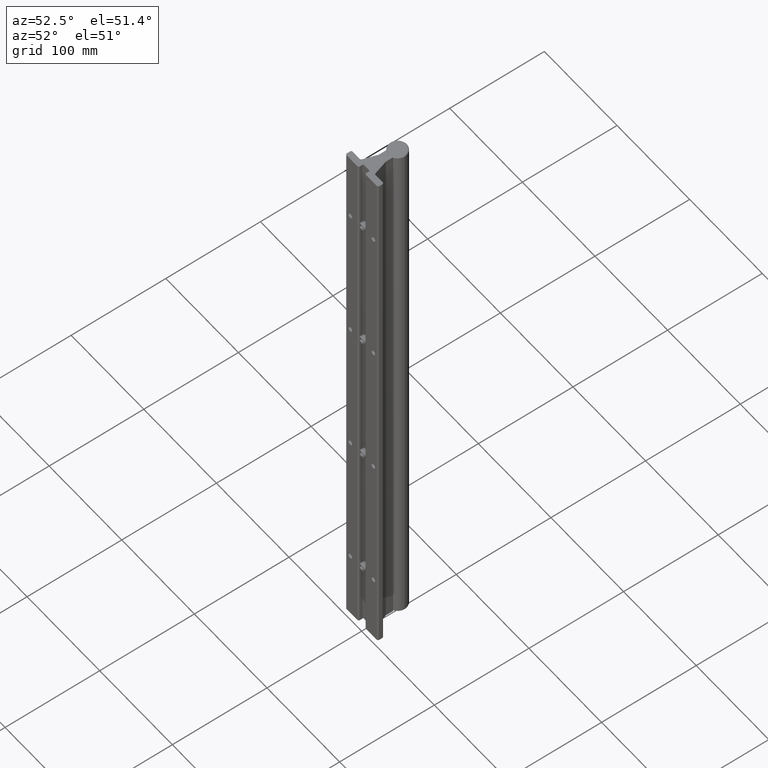
[diagram: clean part render]
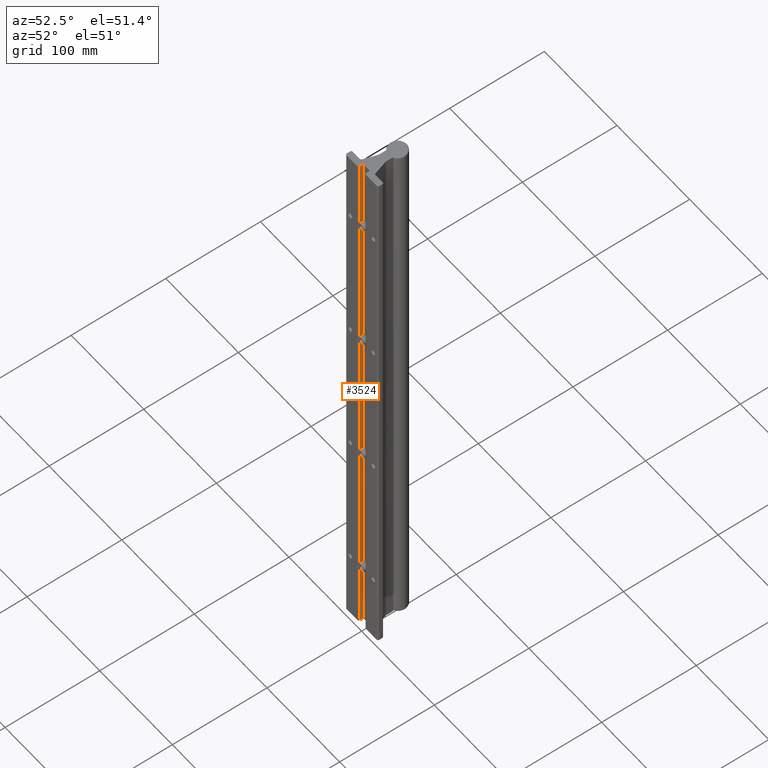
[diagram: same view with one face highlighted and labeled with its STEP entity id]
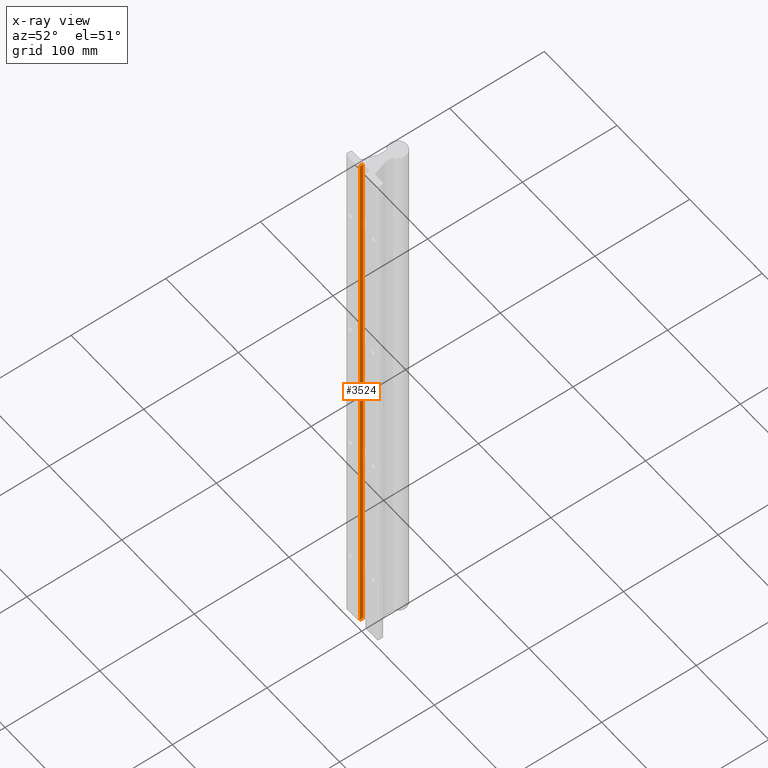
[diagram: x-ray of the same camera — body ghosted, the highlighted face saturated]
A machine part, auxiliary view. The second image highlights one B-rep face of the part: STEP entity #3524.
The next image is the same camera in x-ray: the body ghosted, the highlighted face saturated — about 0% of this face is hidden behind the body in this view.
In plain terms, the highlighted planar face has unit normal (1, -0, 0).
Its self-contained STEP definition (entity closure, byte-faithful):
#236 = EDGE_CURVE ( 'NONE', #2052, #4039, #5230, .T. ) ;
#548 = DIRECTION ( 'NONE',  ( 1.000000000000000000, -2.626776916984868919E-15, 0.0000000000000000000 ) ) ;
#572 = DIRECTION ( 'NONE',  ( 0.0000000000000000000, 0.0000000000000000000, 1.000000000000000000 ) ) ;
#775 = CARTESIAN_POINT ( 'NONE',  ( -0.1749999999999992395, 0.1900000000000000300, -24.00000000000000355 ) ) ;
#909 = CARTESIAN_POINT ( 'NONE',  ( -0.1749999999999995726, 0.06000000000000004635, 0.0000000000000000000 ) ) ;
#988 = EDGE_CURVE ( 'NONE', #1964, #4039, #2918, .T. ) ;
#1236 = DIRECTION ( 'NONE',  ( -2.626776916984868919E-15, -1.000000000000000000, 0.0000000000000000000 ) ) ;
#1435 = CARTESIAN_POINT ( 'NONE',  ( -0.1749999999999995726, 0.06000000000000004635, -26.10463218188032641 ) ) ;
#1576 = ORIENTED_EDGE ( 'NONE', *, *, #2734, .F. ) ;
#1964 = VERTEX_POINT ( 'NONE', #2636 ) ;
#2018 = CARTESIAN_POINT ( 'NONE',  ( -0.1749999999999992395, 0.1900000000000000300, -26.10463218188032641 ) ) ;
#2027 = CARTESIAN_POINT ( 'NONE',  ( -0.1749999999999995726, 0.06000000000000004635, -24.00000000000000355 ) ) ;
#2048 = CARTESIAN_POINT ( 'NONE',  ( -0.1749999999999992395, 0.1900000000000000300, -0.0000000000000000000 ) ) ;
#2052 = VERTEX_POINT ( 'NONE', #775 ) ;
#2060 = CARTESIAN_POINT ( 'NONE',  ( -0.1749999999999995726, 0.06000000000000004635, -26.10463218188032641 ) ) ;
#2216 = EDGE_LOOP ( 'NONE', ( #1576, #5793, #5208, #4336 ) ) ;
#2407 = VERTEX_POINT ( 'NONE', #2027 ) ;
#2636 = CARTESIAN_POINT ( 'NONE',  ( -0.1749999999999995726, 0.06000000000000004635, 0.0000000000000000000 ) ) ;
#2734 = EDGE_CURVE ( 'NONE', #2052, #2407, #5123, .T. ) ;
#2821 = AXIS2_PLACEMENT_3D ( 'NONE', #1435, #548, #4853 ) ;
#2847 = VECTOR ( 'NONE', #5311, 39.37007874015748143 ) ;
#2871 = LINE ( 'NONE', #2060, #5109 ) ;
#2918 = LINE ( 'NONE', #909, #2847 ) ;
#2959 = PLANE ( 'NONE',  #2821 ) ;
#3524 = ADVANCED_FACE ( 'NONE', ( #5329 ), #2959, .T. ) ;
#3800 = VECTOR ( 'NONE', #1236, 39.37007874015748143 ) ;
#3818 = EDGE_CURVE ( 'NONE', #2407, #1964, #2871, .T. ) ;
#4039 = VERTEX_POINT ( 'NONE', #2048 ) ;
#4336 = ORIENTED_EDGE ( 'NONE', *, *, #3818, .F. ) ;
#4853 = DIRECTION ( 'NONE',  ( 2.626776916984868919E-15, 1.000000000000000000, 0.0000000000000000000 ) ) ;
#4921 = VECTOR ( 'NONE', #572, 39.37007874015748143 ) ;
#5109 = VECTOR ( 'NONE', #5956, 39.37007874015748143 ) ;
#5123 = LINE ( 'NONE', #6139, #3800 ) ;
#5208 = ORIENTED_EDGE ( 'NONE', *, *, #988, .F. ) ;
#5230 = LINE ( 'NONE', #2018, #4921 ) ;
#5311 = DIRECTION ( 'NONE',  ( 2.626776916984868919E-15, 1.000000000000000000, 0.0000000000000000000 ) ) ;
#5329 = FACE_OUTER_BOUND ( 'NONE', #2216, .T. ) ;
#5793 = ORIENTED_EDGE ( 'NONE', *, *, #236, .T. ) ;
#5956 = DIRECTION ( 'NONE',  ( 0.0000000000000000000, 0.0000000000000000000, 1.000000000000000000 ) ) ;
#6139 = CARTESIAN_POINT ( 'NONE',  ( -0.1749999999999995726, 0.06000000000000004635, -24.00000000000000355 ) ) ;